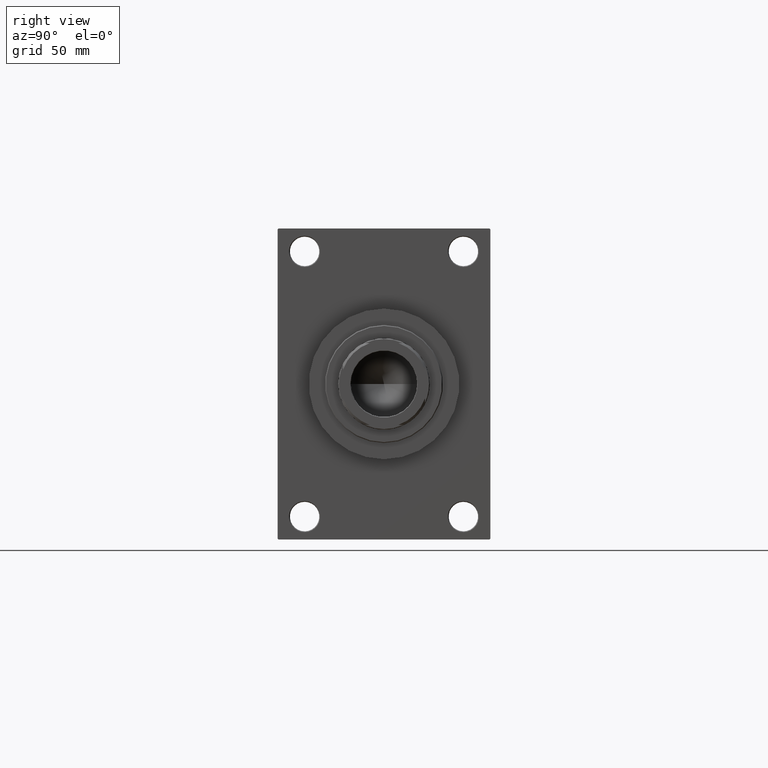
[diagram: clean part render]
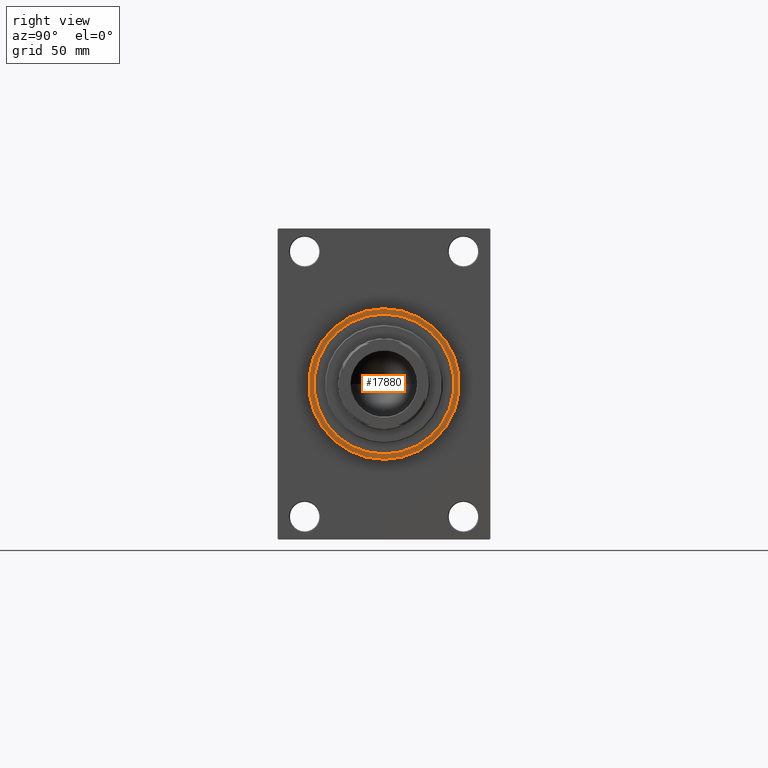
[diagram: same view with one face highlighted and labeled with its STEP entity id]
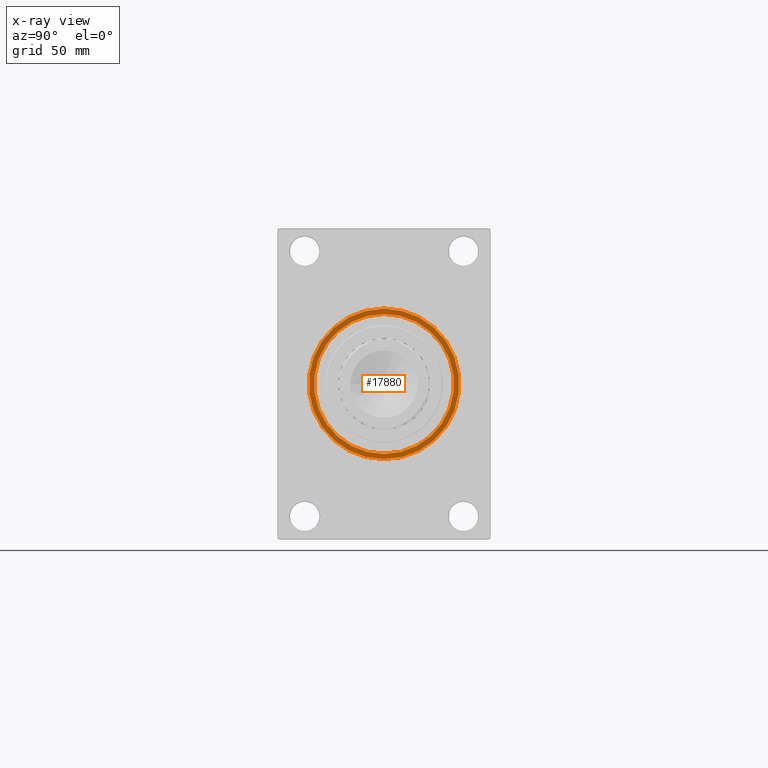
[diagram: x-ray of the same camera — body ghosted, the highlighted face saturated]
A machine part, right view. The second image highlights one B-rep face of the part: STEP entity #17880.
The next image is the same camera in x-ray: the body ghosted, the highlighted face saturated — about 0% of this face is hidden behind the body in this view.
In plain terms, the highlighted planar face has unit normal (1, 0, 0).
Its self-contained STEP definition (entity closure, byte-faithful):
#481 = CARTESIAN_POINT ( 'NONE',  ( 328.0000000000000000, 0.000000000000000000, 0.000000000000000000 ) ) ;
#512 = DIRECTION ( 'NONE',  ( 1.000000000000000000, 0.000000000000000000, 0.000000000000000000 ) ) ;
#785 = CIRCLE ( 'NONE', #38578, 42.75000000000000000 ) ;
#1494 = FACE_OUTER_BOUND ( 'NONE', #29120, .T. ) ;
#1550 = VERTEX_POINT ( 'NONE', #35302 ) ;
#1722 = EDGE_CURVE ( 'NONE', #5605, #1550, #16713, .T. ) ;
#5358 = DIRECTION ( 'NONE',  ( 0.000000000000000000, 0.000000000000000000, -1.000000000000000000 ) ) ;
#5605 = VERTEX_POINT ( 'NONE', #19308 ) ;
#6019 = DIRECTION ( 'NONE',  ( 0.000000000000000000, 0.000000000000000000, -1.000000000000000000 ) ) ;
#7262 = DIRECTION ( 'NONE',  ( 0.000000000000000000, 0.000000000000000000, -1.000000000000000000 ) ) ;
#7718 = AXIS2_PLACEMENT_3D ( 'NONE', #481, #7736, #7262 ) ;
#7736 = DIRECTION ( 'NONE',  ( 1.000000000000000000, 0.000000000000000000, 0.000000000000000000 ) ) ;
#8662 = AXIS2_PLACEMENT_3D ( 'NONE', #16706, #23484, #5358 ) ;
#12123 = CARTESIAN_POINT ( 'NONE',  ( 328.0000000000000000, 0.000000000000000000, 0.000000000000000000 ) ) ;
#12856 = AXIS2_PLACEMENT_3D ( 'NONE', #16417, #13732, #6019 ) ;
#13712 = CARTESIAN_POINT ( 'NONE',  ( 328.0000000000000000, 5.235365066354935472E-15, 42.75000000000000000 ) ) ;
#13732 = DIRECTION ( 'NONE',  ( 1.000000000000000000, 0.000000000000000000, 0.000000000000000000 ) ) ;
#16417 = CARTESIAN_POINT ( 'NONE',  ( 328.0000000000000000, 0.000000000000000000, 0.000000000000000000 ) ) ;
#16706 = CARTESIAN_POINT ( 'NONE',  ( 328.0000000000000000, 0.000000000000000000, 0.000000000000000000 ) ) ;
#16713 = CIRCLE ( 'NONE', #12856, 46.00000000000000000 ) ;
#17880 = ADVANCED_FACE ( 'NONE', ( #27346, #1494 ), #19624, .T. ) ;
#18141 = ORIENTED_EDGE ( 'NONE', *, *, #29322, .F. ) ;
#19308 = CARTESIAN_POINT ( 'NONE',  ( 328.0000000000000000, 5.633375276077824704E-15, -46.00000000000000000 ) ) ;
#19415 = AXIS2_PLACEMENT_3D ( 'NONE', #12123, #512, #45424 ) ;
#19624 = PLANE ( 'NONE',  #8662 ) ;
#20155 = CIRCLE ( 'NONE', #19415, 46.00000000000000000 ) ;
#23484 = DIRECTION ( 'NONE',  ( 1.000000000000000000, 0.000000000000000000, 0.000000000000000000 ) ) ;
#24333 = VERTEX_POINT ( 'NONE', #40266 ) ;
#25882 = EDGE_LOOP ( 'NONE', ( #46216, #18141 ) ) ;
#27346 = FACE_BOUND ( 'NONE', #25882, .T. ) ;
#27758 = CARTESIAN_POINT ( 'NONE',  ( 328.0000000000000000, 0.000000000000000000, 0.000000000000000000 ) ) ;
#29120 = EDGE_LOOP ( 'NONE', ( #36432, #37691 ) ) ;
#29322 = EDGE_CURVE ( 'NONE', #39017, #24333, #35508, .T. ) ;
#29425 = EDGE_CURVE ( 'NONE', #24333, #39017, #785, .T. ) ;
#35302 = CARTESIAN_POINT ( 'NONE',  ( 328.0000000000000000, 0.000000000000000000, 46.00000000000000000 ) ) ;
#35508 = CIRCLE ( 'NONE', #7718, 42.75000000000000000 ) ;
#35757 = EDGE_CURVE ( 'NONE', #1550, #5605, #20155, .T. ) ;
#36432 = ORIENTED_EDGE ( 'NONE', *, *, #35757, .T. ) ;
#37691 = ORIENTED_EDGE ( 'NONE', *, *, #1722, .T. ) ;
#38578 = AXIS2_PLACEMENT_3D ( 'NONE', #27758, #42488, #46095 ) ;
#39017 = VERTEX_POINT ( 'NONE', #13712 ) ;
#40266 = CARTESIAN_POINT ( 'NONE',  ( 328.0000000000000000, 0.000000000000000000, -42.75000000000000000 ) ) ;
#42488 = DIRECTION ( 'NONE',  ( 1.000000000000000000, 0.000000000000000000, 0.000000000000000000 ) ) ;
#45424 = DIRECTION ( 'NONE',  ( 0.000000000000000000, 0.000000000000000000, -1.000000000000000000 ) ) ;
#46095 = DIRECTION ( 'NONE',  ( 0.000000000000000000, 0.000000000000000000, -1.000000000000000000 ) ) ;
#46216 = ORIENTED_EDGE ( 'NONE', *, *, #29425, .F. ) ;